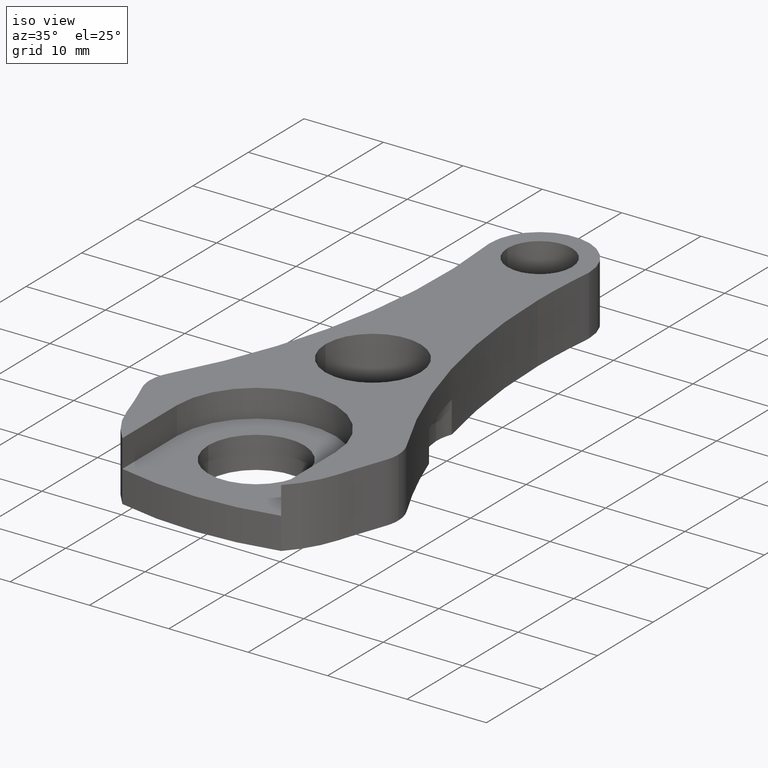
[diagram: clean part render]
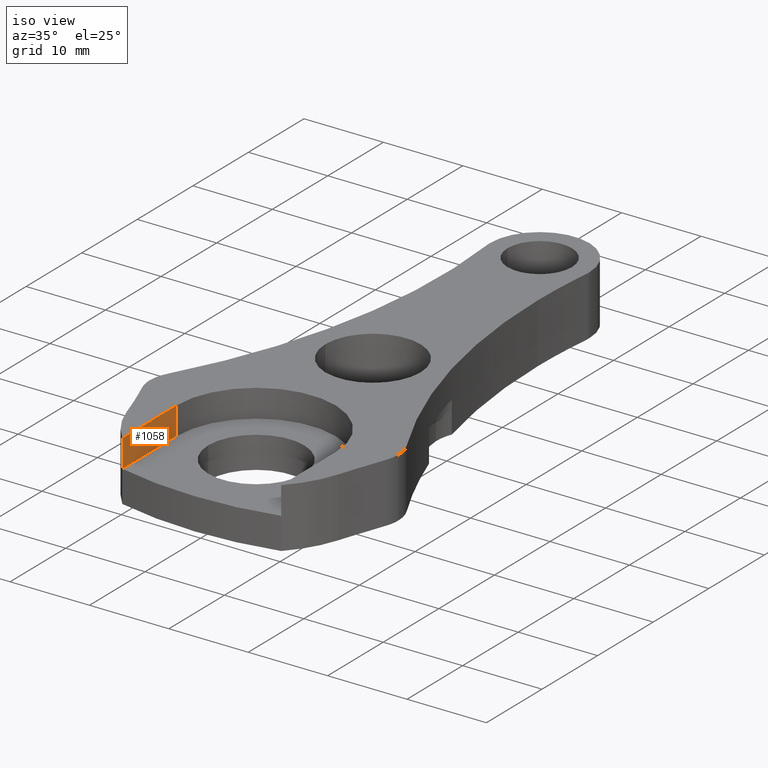
[diagram: same view with one face highlighted and labeled with its STEP entity id]
A machine part, iso view. The second image highlights one B-rep face of the part: STEP entity #1058.
In plain terms, the highlighted planar face has unit normal (-1, 0, -0).
Its self-contained STEP definition (entity closure, byte-faithful):
#30 = VERTEX_POINT ( 'NONE', #237 ) ;
#32 = DIRECTION ( 'NONE',  ( 2.627434620609032000E-046, -1.313717310304516000E-046, 1.000000000000000000 ) ) ;
#127 = CARTESIAN_POINT ( 'NONE',  ( -10.00000000000002300, -9.797958971132711500, 0.0000000000000000000 ) ) ;
#205 = CARTESIAN_POINT ( 'NONE',  ( -10.00000000000000900, -9.797958971132697300, 79.07476084379766200 ) ) ;
#237 = CARTESIAN_POINT ( 'NONE',  ( -9.999999999999994700, 0.0000000000000000000, 3.500000000000003100 ) ) ;
#288 = VECTOR ( 'NONE', #410, 1000.000000000000000 ) ;
#293 = VERTEX_POINT ( 'NONE', #127 ) ;
#306 = ORIENTED_EDGE ( 'NONE', *, *, #713, .T. ) ;
#315 = EDGE_CURVE ( 'NONE', #293, #671, #862, .T. ) ;
#323 = FACE_OUTER_BOUND ( 'NONE', #692, .T. ) ;
#340 = LINE ( 'NONE', #205, #803 ) ;
#385 = CARTESIAN_POINT ( 'NONE',  ( -9.999999999999994700, 0.0000000000000000000, 3.500000000000003100 ) ) ;
#410 = DIRECTION ( 'NONE',  ( 1.770494733737654000E-015, 1.000000000000000000, -1.313717310304516000E-046 ) ) ;
#412 = EDGE_CURVE ( 'NONE', #525, #293, #340, .T. ) ;
#420 = DIRECTION ( 'NONE',  ( -1.770494733737654000E-015, -1.000000000000000000, 1.313717310304516000E-046 ) ) ;
#432 = CARTESIAN_POINT ( 'NONE',  ( -9.999999999999994700, 0.0000000000000000000, 0.0000000000000000000 ) ) ;
#525 = VERTEX_POINT ( 'NONE', #885 ) ;
#554 = LINE ( 'NONE', #617, #969 ) ;
#584 = ORIENTED_EDGE ( 'NONE', *, *, #664, .T. ) ;
#617 = CARTESIAN_POINT ( 'NONE',  ( -9.999999999999994700, 0.0000000000000000000, -29.00000000000002500 ) ) ;
#664 = EDGE_CURVE ( 'NONE', #30, #525, #853, .T. ) ;
#671 = VERTEX_POINT ( 'NONE', #921 ) ;
#692 = EDGE_LOOP ( 'NONE', ( #901, #306, #584, #866 ) ) ;
#713 = EDGE_CURVE ( 'NONE', #671, #30, #554, .T. ) ;
#727 = PLANE ( 'NONE',  #805 ) ;
#733 = VECTOR ( 'NONE', #871, 1000.000000000000000 ) ;
#803 = VECTOR ( 'NONE', #1038, 1000.000000000000000 ) ;
#805 = AXIS2_PLACEMENT_3D ( 'NONE', #1061, #905, #420 ) ;
#853 = LINE ( 'NONE', #385, #733 ) ;
#862 = LINE ( 'NONE', #432, #288 ) ;
#866 = ORIENTED_EDGE ( 'NONE', *, *, #412, .T. ) ;
#871 = DIRECTION ( 'NONE',  ( -1.770494733737654000E-015, -1.000000000000000000, 1.313717310304516000E-046 ) ) ;
#885 = CARTESIAN_POINT ( 'NONE',  ( -10.00000000000002300, -9.797958971132711500, 3.500000000000003100 ) ) ;
#901 = ORIENTED_EDGE ( 'NONE', *, *, #315, .T. ) ;
#905 = DIRECTION ( 'NONE',  ( -1.000000000000000000, 1.770494733737654000E-015, -2.627434620609032000E-046 ) ) ;
#921 = CARTESIAN_POINT ( 'NONE',  ( -9.999999999999994700, 0.0000000000000000000, 0.0000000000000000000 ) ) ;
#969 = VECTOR ( 'NONE', #32, 1000.000000000000000 ) ;
#1038 = DIRECTION ( 'NONE',  ( -2.627434620609032000E-046, 1.313717310304516000E-046, -1.000000000000000000 ) ) ;
#1058 = ADVANCED_FACE ( 'NONE', ( #323 ), #727, .F. ) ;
#1061 = CARTESIAN_POINT ( 'NONE',  ( -9.999999999999994700, 0.0000000000000000000, -29.00000000000002500 ) ) ;